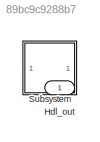
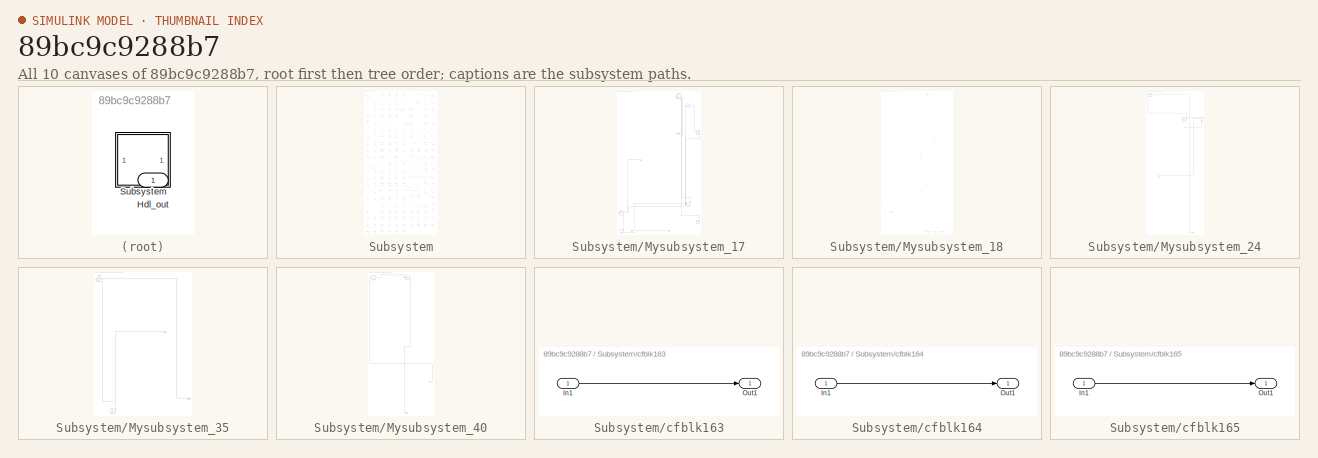
[diagram: thumbnail index - all 10 canvases of the model, root first then tree order]
MODEL slx_89bc9c9288b7
KIND model
CONFIG AbsTol = auto
CONFIG EnableMultiTasking = off
CONFIG FixedStep = auto
CONFIG MaxStep = auto
CONFIG MinStep = auto
CONFIG RelTol = 1e-3
CONFIG SampleTimeConstraint = Unconstrained
CONFIG SolverName = VariableStepAuto
CONFIG StartTime = 0.0
CONFIG StopTime = 10.0
BLOCK [Outport] Hdl_out
  OutDataTypeStr = uint8
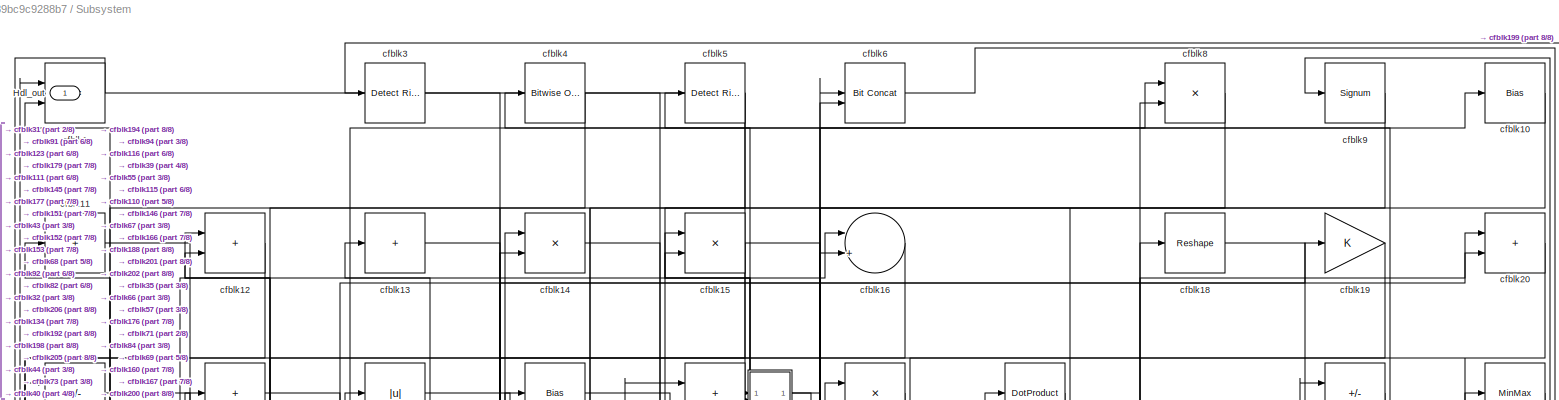
[diagram: Subsystem - part 1/8, full width, top band]
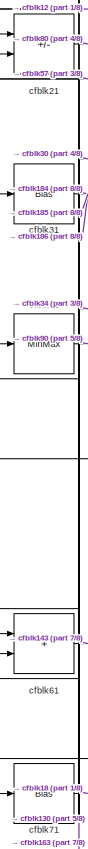
[diagram: Subsystem - part 2/8, top left region]
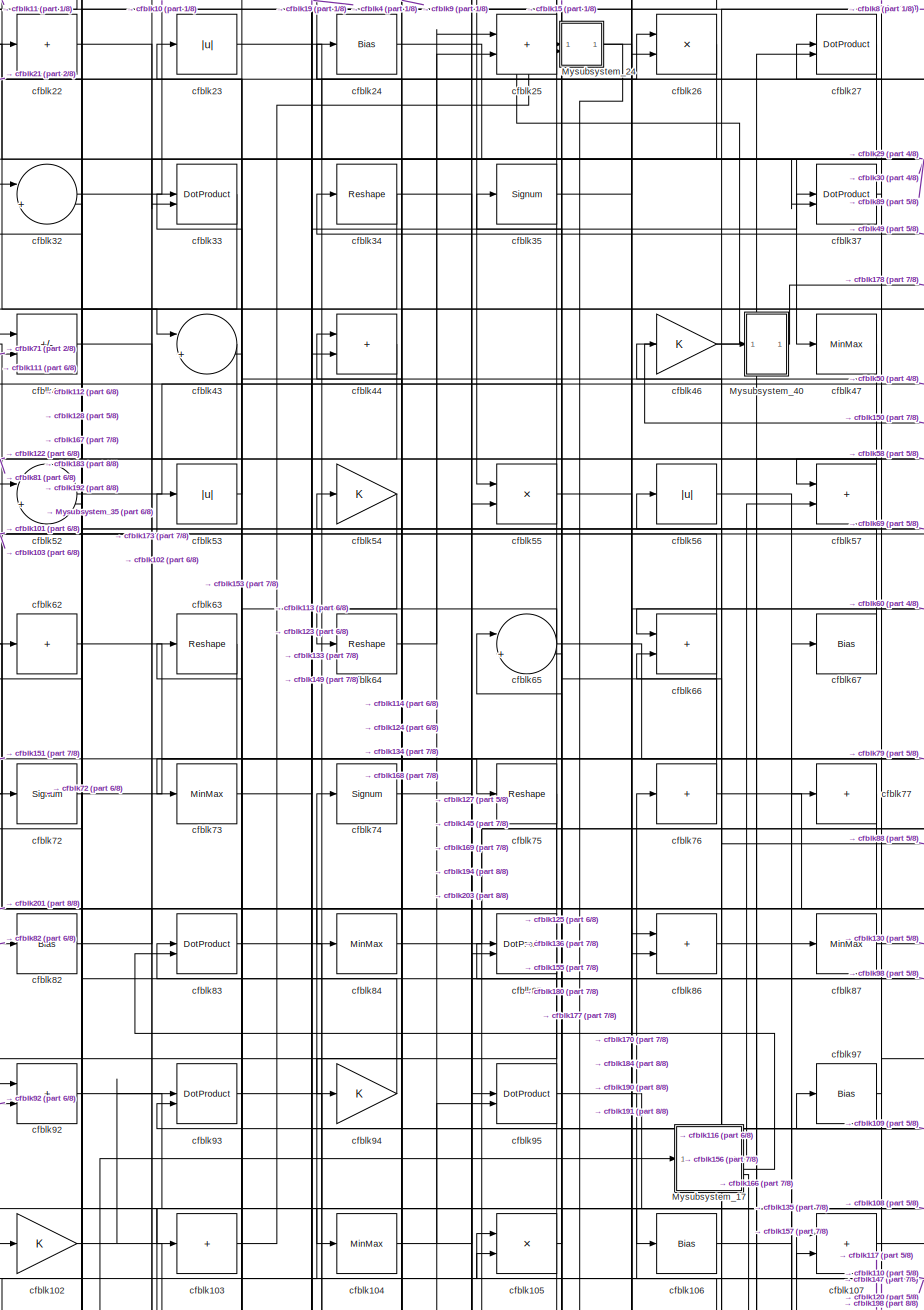
[diagram: Subsystem - part 3/8, top center region]
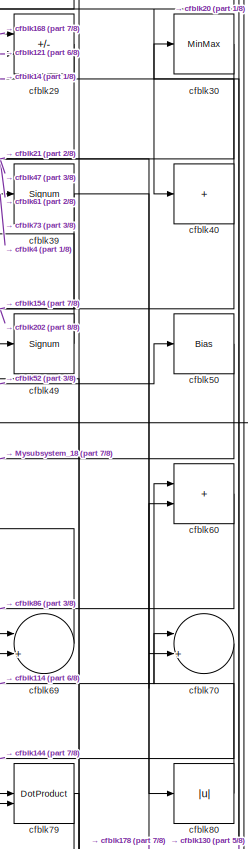
[diagram: Subsystem - part 4/8, top right region]
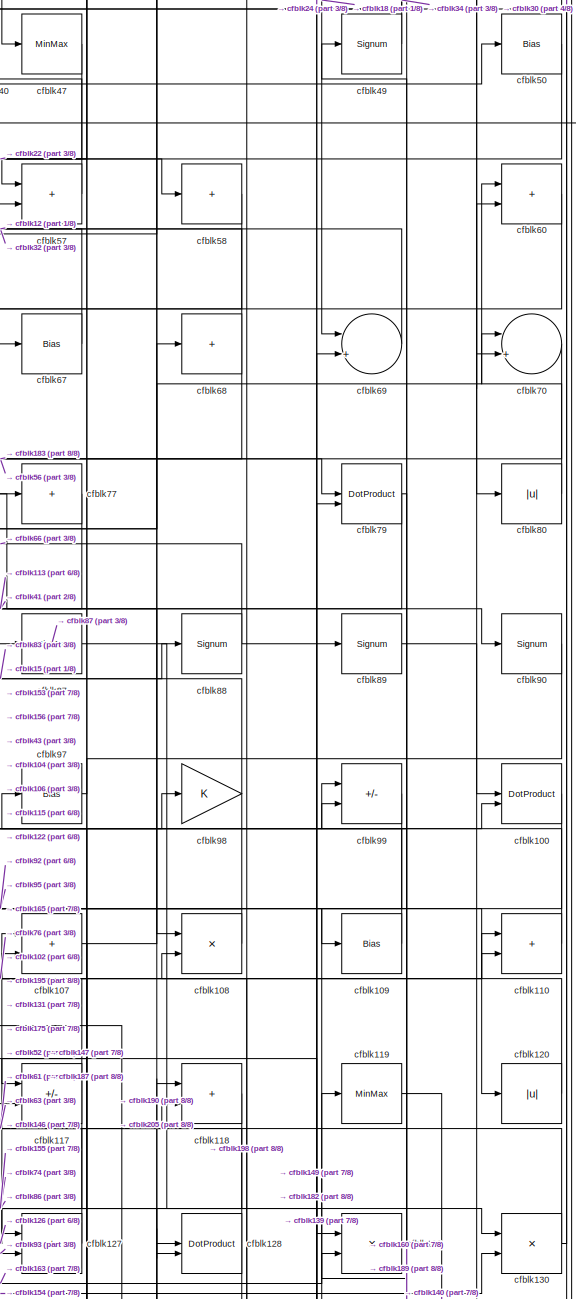
[diagram: Subsystem - part 5/8, middle right region]
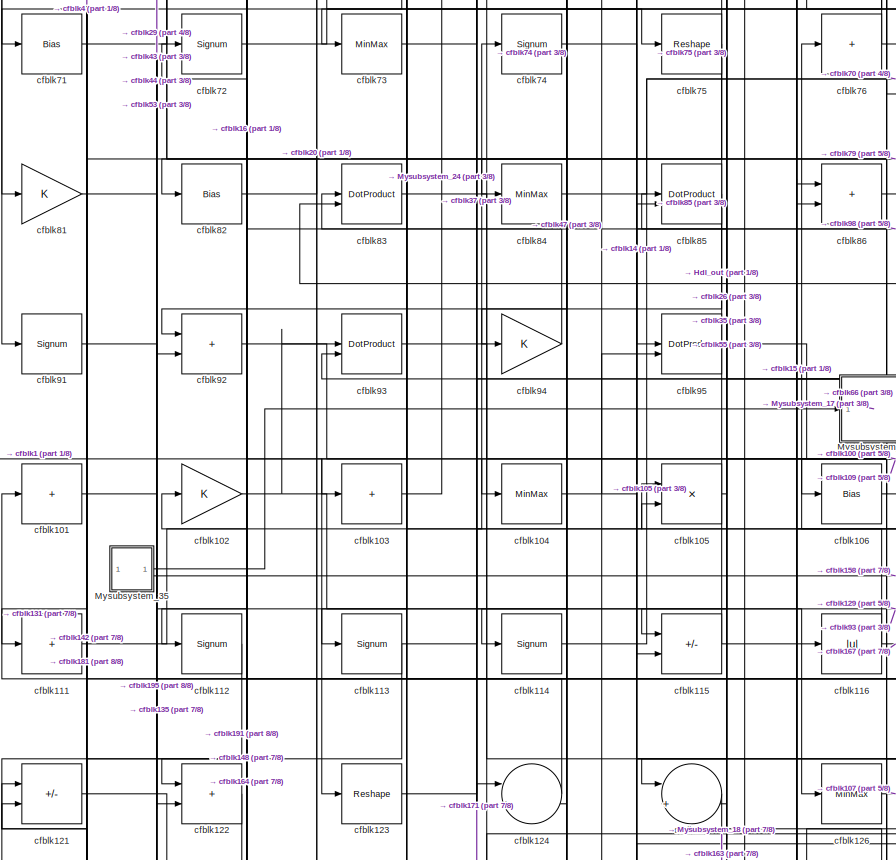
[diagram: Subsystem - part 6/8, middle left region]
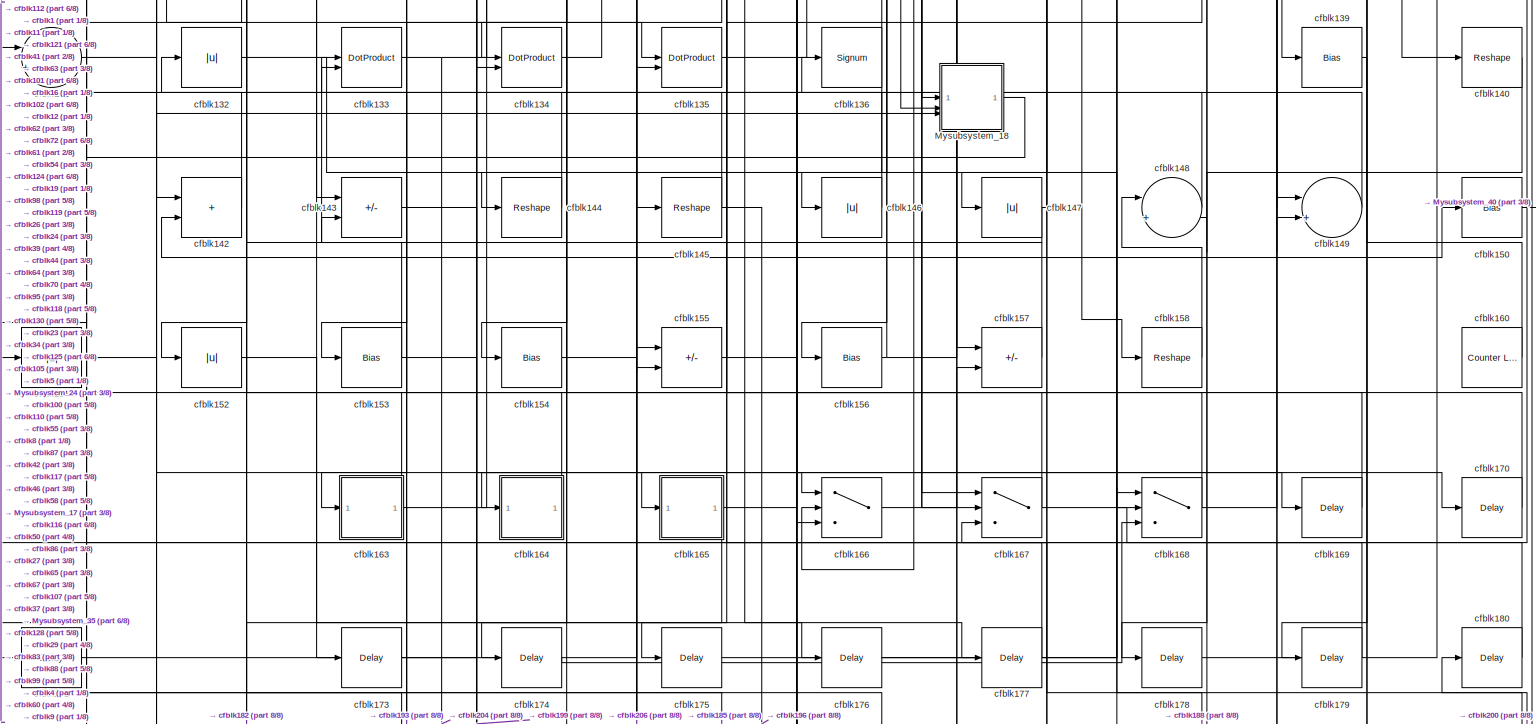
[diagram: Subsystem - part 7/8, full width, bottom band]
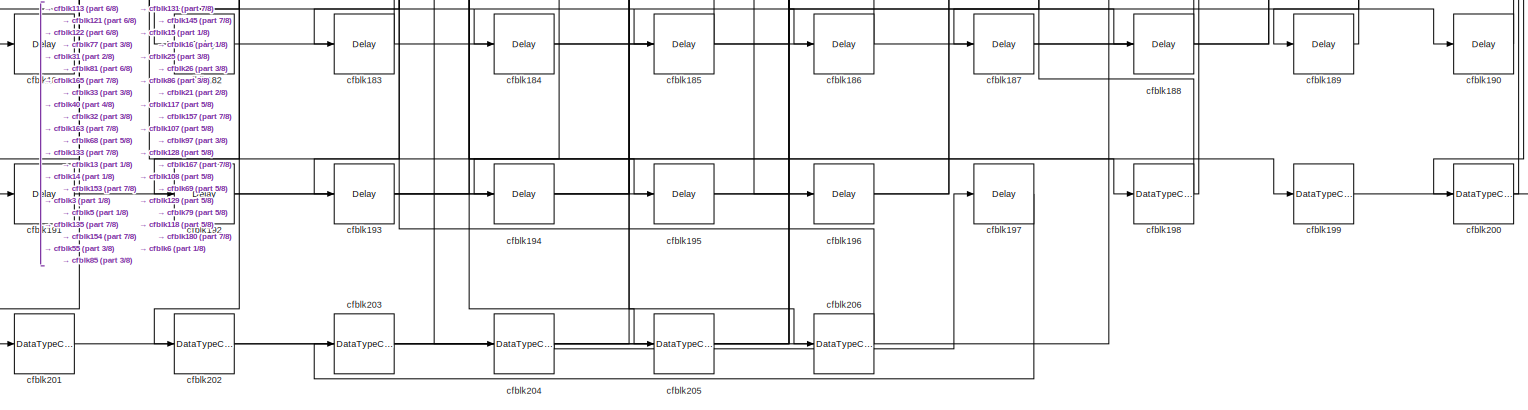
[diagram: Subsystem - part 8/8, full width, bottom band]
BLOCK [SubSystem] Subsystem
BLOCK [Outport] Subsystem/Hdl_out
  OutDataTypeStr = uint8
BLOCK [SubSystem] Subsystem/Mysubsystem_17
  RTWFcnName = Mysubsystem_17
  RTWFcnNameOpts = User specified
  RTWFileNameOpts = Use function name
  RTWSystemCode = Reusable function
  TreatAsAtomicUnit = on
BLOCK [Inport] Subsystem/Mysubsystem_17/In1
BLOCK [Outport] Subsystem/Mysubsystem_17/Out1
BLOCK [Outport] Subsystem/Mysubsystem_17/Out2
  Port = 2
BLOCK [Outport] Subsystem/Mysubsystem_17/Out3
  Port = 3
BLOCK [Sum] Subsystem/Mysubsystem_17/cfblk138
  IconShape = rectangular
BLOCK [MinMax] Subsystem/Mysubsystem_17/cfblk141
BLOCK [Reference] Subsystem/Mysubsystem_17/cfblk159  REF=hdlsllib/Sources/Counter
Free-Running
  SourceBlock = hdlsllib/Sources/Counter\nFree-Running
  SourceType = Counter Free-Running
BLOCK [Constant] Subsystem/Mysubsystem_17/cfblk161
  SampleTime = -1
BLOCK [Product] Subsystem/Mysubsystem_17/cfblk17
  Inputs = */
  RndMeth = Zero
  SaturateOnIntegerOverflow = on
BLOCK [Gain] Subsystem/Mysubsystem_17/cfblk28
BLOCK [Reshape] Subsystem/Mysubsystem_17/cfblk59
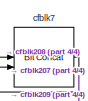
[diagram: Subsystem/Mysubsystem_18 - part 1/4, top center region]
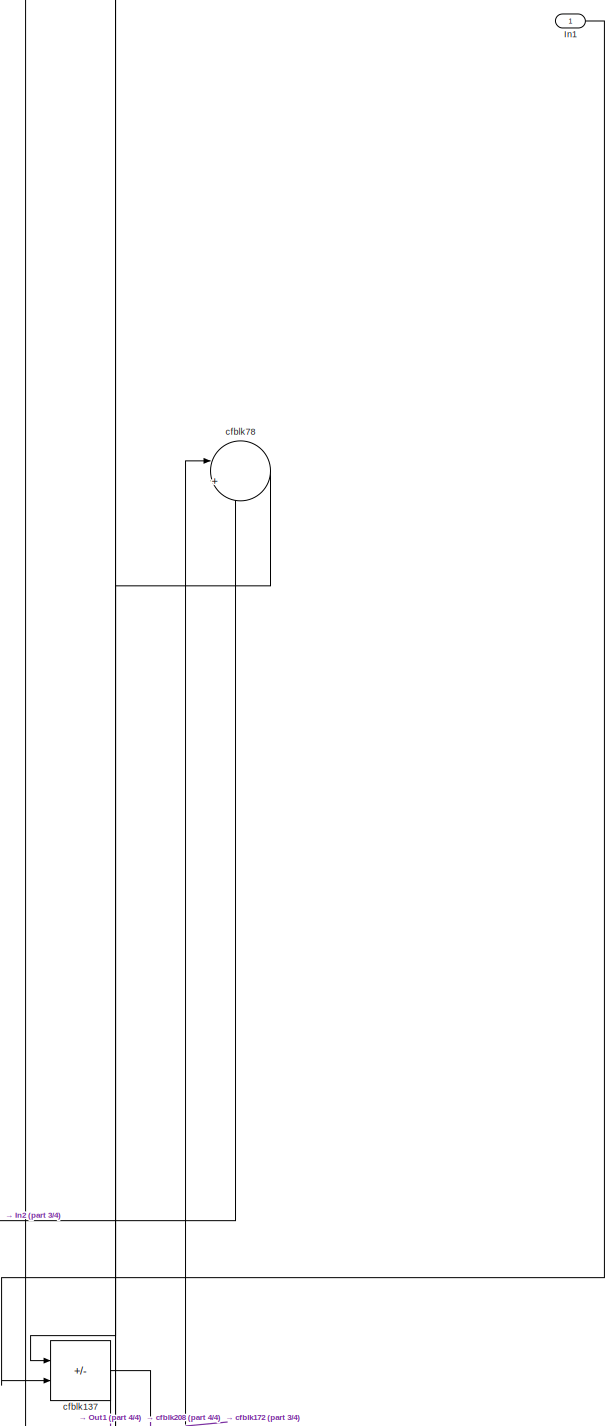
[diagram: Subsystem/Mysubsystem_18 - part 2/4, middle right region]
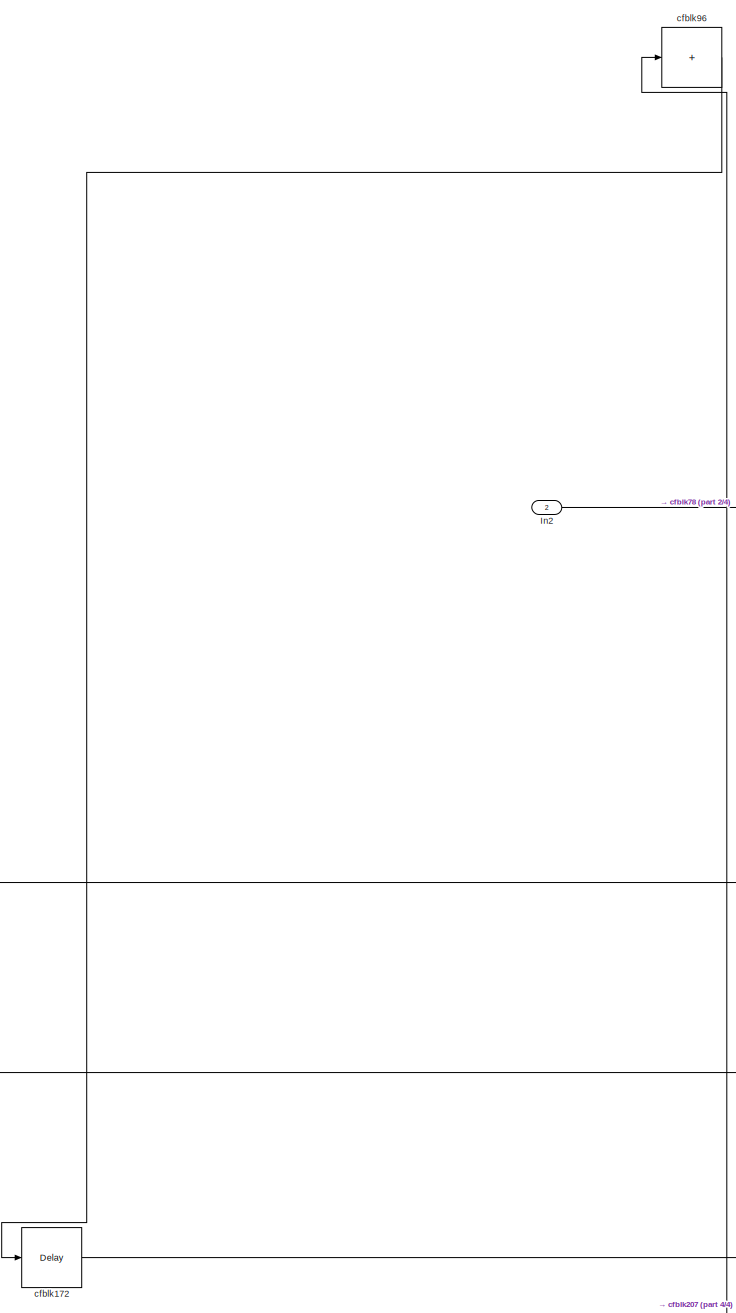
[diagram: Subsystem/Mysubsystem_18 - part 3/4, central region]
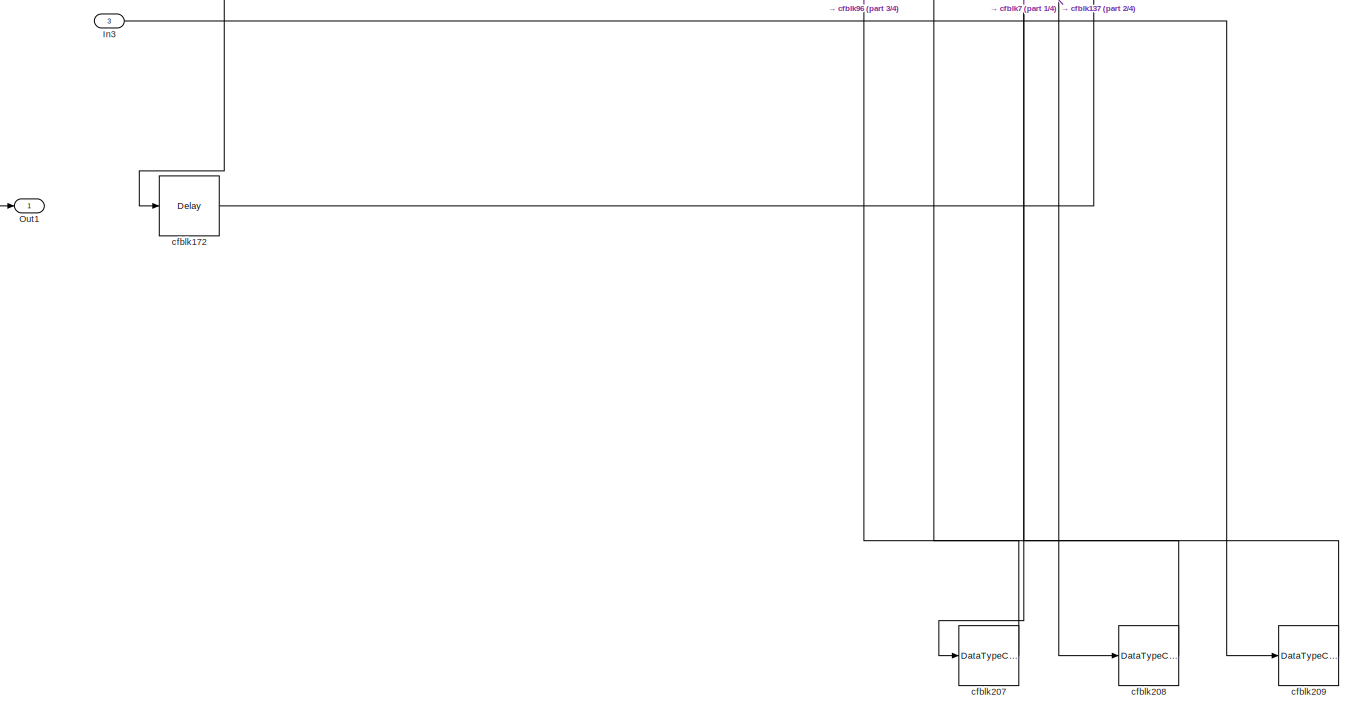
[diagram: Subsystem/Mysubsystem_18 - part 4/4, full width, bottom band]
BLOCK [SubSystem] Subsystem/Mysubsystem_18
  RTWFcnName = Mysubsystem_18
  RTWFcnNameOpts = User specified
  RTWFileNameOpts = Use function name
  RTWSystemCode = Reusable function
  TreatAsAtomicUnit = on
BLOCK [Inport] Subsystem/Mysubsystem_18/In1
BLOCK [Inport] Subsystem/Mysubsystem_18/In2
  Port = 2
BLOCK [Inport] Subsystem/Mysubsystem_18/In3
  Port = 3
BLOCK [Outport] Subsystem/Mysubsystem_18/Out1
BLOCK [Sum] Subsystem/Mysubsystem_18/cfblk137
  IconShape = rectangular
  Inputs = +-
BLOCK [Delay] Subsystem/Mysubsystem_18/cfblk172
  InputPortMap = u0
  SampleTime = 1
BLOCK [DataTypeConversion] Subsystem/Mysubsystem_18/cfblk207
  OutDataTypeStr = uint8
  RndMeth = Floor
  SaturateOnIntegerOverflow = off
BLOCK [DataTypeConversion] Subsystem/Mysubsystem_18/cfblk208
  OutDataTypeStr = uint8
  RndMeth = Floor
  SaturateOnIntegerOverflow = off
BLOCK [DataTypeConversion] Subsystem/Mysubsystem_18/cfblk209
  OutDataTypeStr = uint8
  RndMeth = Floor
  SaturateOnIntegerOverflow = off
BLOCK [Reference] Subsystem/Mysubsystem_18/cfblk7  REF=hdlsllib/Logic and Bit
Operations/Bit Concat
  SourceBlock = hdlsllib/Logic and Bit\nOperations/Bit Concat
  SourceType = Bit Concat
BLOCK [Sum] Subsystem/Mysubsystem_18/cfblk78
  Inputs = |++
BLOCK [Sum] Subsystem/Mysubsystem_18/cfblk96
  IconShape = rectangular
  Inputs = +
BLOCK [SubSystem] Subsystem/Mysubsystem_24
  RTWFcnName = Mysubsystem_24
  RTWFcnNameOpts = User specified
  RTWFileNameOpts = Use function name
  RTWSystemCode = Reusable function
  TreatAsAtomicUnit = on
BLOCK [Inport] Subsystem/Mysubsystem_24/In1
BLOCK [Inport] Subsystem/Mysubsystem_24/In2
  Port = 2
BLOCK [Outport] Subsystem/Mysubsystem_24/Out1
BLOCK [ArithShift] Subsystem/Mysubsystem_24/cfblk2
  BitShiftNumber = 8
  InputPortMap = u0
BLOCK [Abs] Subsystem/Mysubsystem_24/cfblk36
  SaturateOnIntegerOverflow = off
BLOCK [Sum] Subsystem/Mysubsystem_24/cfblk38
  Inputs = |++
BLOCK [SubSystem] Subsystem/Mysubsystem_35
  RTWFcnName = Mysubsystem_35
  RTWFcnNameOpts = User specified
  RTWFileNameOpts = Use function name
  RTWSystemCode = Reusable function
  TreatAsAtomicUnit = on
BLOCK [Outport] Subsystem/Mysubsystem_35/Out1
BLOCK [Outport] Subsystem/Mysubsystem_35/Out2
  Port = 2
BLOCK [Ground] Subsystem/Mysubsystem_35/cfblk162
BLOCK [Gain] Subsystem/Mysubsystem_35/cfblk51
BLOCK [SubSystem] Subsystem/Mysubsystem_40
  RTWFcnName = Mysubsystem_40
  RTWFcnNameOpts = User specified
  RTWFileNameOpts = Use function name
  RTWSystemCode = Reusable function
  TreatAsAtomicUnit = on
BLOCK [Inport] Subsystem/Mysubsystem_40/In1
BLOCK [Outport] Subsystem/Mysubsystem_40/Out1
BLOCK [Abs] Subsystem/Mysubsystem_40/cfblk45
  SaturateOnIntegerOverflow = off
BLOCK [Bias] Subsystem/Mysubsystem_40/cfblk48
  Bias = 0.0
  SaturateOnIntegerOverflow = off
BLOCK [RelationalOperator] Subsystem/cfblk1
  InputSameDT = off
  Operator = <=
  OutDataTypeStr = boolean
BLOCK [Bias] Subsystem/cfblk10
  Bias = 0.0
  SaturateOnIntegerOverflow = off
BLOCK [DotProduct] Subsystem/cfblk100
  OutDataTypeStr = uint8
BLOCK [Sum] Subsystem/cfblk101
  IconShape = rectangular
  Inputs = +
  OutDataTypeStr = uint8
BLOCK [Gain] Subsystem/cfblk102
  OutDataTypeStr = uint8
BLOCK [Sum] Subsystem/cfblk103
  IconShape = rectangular
  Inputs = +
  OutDataTypeStr = uint8
BLOCK [MinMax] Subsystem/cfblk104
  OutDataTypeStr = uint8
BLOCK [Product] Subsystem/cfblk105
  Inputs = */
  OutDataTypeStr = uint8
  RndMeth = Zero
  SaturateOnIntegerOverflow = on
BLOCK [Bias] Subsystem/cfblk106
  Bias = 0.0
  SaturateOnIntegerOverflow = off
BLOCK [Sum] Subsystem/cfblk107
  IconShape = rectangular
  OutDataTypeStr = uint8
BLOCK [Product] Subsystem/cfblk108
  Inputs = */
  OutDataTypeStr = uint8
  RndMeth = Zero
  SaturateOnIntegerOverflow = on
BLOCK [Bias] Subsystem/cfblk109
  Bias = 0.0
  SaturateOnIntegerOverflow = off
BLOCK [Sum] Subsystem/cfblk11
  IconShape = rectangular
  Inputs = +
  OutDataTypeStr = uint8
BLOCK [Sum] Subsystem/cfblk110
  IconShape = rectangular
  OutDataTypeStr = uint8
BLOCK [Sum] Subsystem/cfblk111
  IconShape = rectangular
  Inputs = +
  OutDataTypeStr = uint8
BLOCK [Signum] Subsystem/cfblk112
BLOCK [Signum] Subsystem/cfblk113
BLOCK [Signum] Subsystem/cfblk114
BLOCK [Sum] Subsystem/cfblk115
  IconShape = rectangular
  Inputs = +-
  OutDataTypeStr = uint8
BLOCK [Abs] Subsystem/cfblk116
  OutDataTypeStr = uint8
  SaturateOnIntegerOverflow = off
BLOCK [Sum] Subsystem/cfblk117
  IconShape = rectangular
  Inputs = +-
  OutDataTypeStr = uint8
BLOCK [Sum] Subsystem/cfblk118
  IconShape = rectangular
  OutDataTypeStr = uint8
BLOCK [MinMax] Subsystem/cfblk119
  OutDataTypeStr = uint8
BLOCK [Sum] Subsystem/cfblk12
  IconShape = rectangular
  OutDataTypeStr = uint8
BLOCK [Abs] Subsystem/cfblk120
  OutDataTypeStr = uint8
  SaturateOnIntegerOverflow = off
BLOCK [Sum] Subsystem/cfblk121
  IconShape = rectangular
  Inputs = +-
  OutDataTypeStr = uint8
BLOCK [Sum] Subsystem/cfblk122
  IconShape = rectangular
  OutDataTypeStr = uint8
BLOCK [Reshape] Subsystem/cfblk123
BLOCK [Sum] Subsystem/cfblk124
  Inputs = |++
  OutDataTypeStr = uint8
BLOCK [Sum] Subsystem/cfblk125
  Inputs = |++
  OutDataTypeStr = uint8
BLOCK [MinMax] Subsystem/cfblk126
  OutDataTypeStr = uint8
BLOCK [Sum] Subsystem/cfblk127
  IconShape = rectangular
  OutDataTypeStr = uint8
BLOCK [DotProduct] Subsystem/cfblk128
  OutDataTypeStr = uint8
BLOCK [Product] Subsystem/cfblk129
  Inputs = */
  OutDataTypeStr = uint8
  RndMeth = Zero
  SaturateOnIntegerOverflow = on
BLOCK [Sum] Subsystem/cfblk13
  IconShape = rectangular
  Inputs = +
  OutDataTypeStr = uint8
BLOCK [Product] Subsystem/cfblk130
  Inputs = */
  OutDataTypeStr = uint8
  RndMeth = Zero
  SaturateOnIntegerOverflow = on
BLOCK [Sum] Subsystem/cfblk131
  Inputs = |++
  OutDataTypeStr = uint8
BLOCK [Abs] Subsystem/cfblk132
  OutDataTypeStr = uint8
  SaturateOnIntegerOverflow = off
BLOCK [DotProduct] Subsystem/cfblk133
  OutDataTypeStr = uint8
BLOCK [DotProduct] Subsystem/cfblk134
  OutDataTypeStr = uint8
BLOCK [DotProduct] Subsystem/cfblk135
  OutDataTypeStr = uint8
BLOCK [Signum] Subsystem/cfblk136
BLOCK [Bias] Subsystem/cfblk139
  Bias = 0.0
  SaturateOnIntegerOverflow = off
BLOCK [Product] Subsystem/cfblk14
  Inputs = */
  OutDataTypeStr = uint8
  RndMeth = Zero
  SaturateOnIntegerOverflow = on
BLOCK [Reshape] Subsystem/cfblk140
BLOCK [Sum] Subsystem/cfblk142
  IconShape = rectangular
  OutDataTypeStr = uint8
BLOCK [Sum] Subsystem/cfblk143
  IconShape = rectangular
  Inputs = +-
  OutDataTypeStr = uint8
BLOCK [Reshape] Subsystem/cfblk144
BLOCK [Reshape] Subsystem/cfblk145
BLOCK [Abs] Subsystem/cfblk146
  OutDataTypeStr = uint8
  SaturateOnIntegerOverflow = off
BLOCK [Abs] Subsystem/cfblk147
  OutDataTypeStr = uint8
  SaturateOnIntegerOverflow = off
BLOCK [Sum] Subsystem/cfblk148
  Inputs = |++
  OutDataTypeStr = uint8
BLOCK [Sum] Subsystem/cfblk149
  Inputs = |++
  OutDataTypeStr = uint8
BLOCK [Product] Subsystem/cfblk15
  Inputs = */
  OutDataTypeStr = uint8
  RndMeth = Zero
  SaturateOnIntegerOverflow = on
BLOCK [Bias] Subsystem/cfblk150
  Bias = 0.0
  SaturateOnIntegerOverflow = off
BLOCK [Abs] Subsystem/cfblk151
  OutDataTypeStr = uint8
  SaturateOnIntegerOverflow = off
BLOCK [Abs] Subsystem/cfblk152
  OutDataTypeStr = uint8
  SaturateOnIntegerOverflow = off
BLOCK [Bias] Subsystem/cfblk153
  Bias = 0.0
  SaturateOnIntegerOverflow = off
BLOCK [Bias] Subsystem/cfblk154
  Bias = 0.0
  SaturateOnIntegerOverflow = off
BLOCK [Sum] Subsystem/cfblk155
  IconShape = rectangular
  Inputs = +-
  OutDataTypeStr = uint8
BLOCK [Bias] Subsystem/cfblk156
  Bias = 0.0
  SaturateOnIntegerOverflow = off
BLOCK [Sum] Subsystem/cfblk157
  IconShape = rectangular
  Inputs = +-
  OutDataTypeStr = uint8
BLOCK [Reshape] Subsystem/cfblk158
BLOCK [Sum] Subsystem/cfblk16
  Inputs = |++
  OutDataTypeStr = uint8
BLOCK [Reference] Subsystem/cfblk160  REF=hdlsllib/Sources/Counter
Limited
  SourceBlock = hdlsllib/Sources/Counter\nLimited
  SourceType = Counter Limited
BLOCK [SubSystem] Subsystem/cfblk163
  LibrarySourceBlock = hdlsllib/Ports &\nSubsystems/Subsystem
BLOCK [Inport] Subsystem/cfblk163/In1
BLOCK [Outport] Subsystem/cfblk163/Out1
BLOCK [SubSystem] Subsystem/cfblk164
  LibrarySourceBlock = hdlsllib/Ports &\nSubsystems/Subsystem
BLOCK [Inport] Subsystem/cfblk164/In1
BLOCK [Outport] Subsystem/cfblk164/Out1
BLOCK [SubSystem] Subsystem/cfblk165
  LibrarySourceBlock = hdlsllib/Ports &\nSubsystems/Subsystem
BLOCK [Inport] Subsystem/cfblk165/In1
BLOCK [Outport] Subsystem/cfblk165/Out1
BLOCK [Switch] Subsystem/cfblk166
  InputSameDT = off
  OutDataTypeStr = uint8
  SaturateOnIntegerOverflow = off
BLOCK [Switch] Subsystem/cfblk167
  InputSameDT = off
  OutDataTypeStr = uint8
  SaturateOnIntegerOverflow = off
BLOCK [Switch] Subsystem/cfblk168
  InputSameDT = off
  OutDataTypeStr = uint8
  SaturateOnIntegerOverflow = off
BLOCK [Delay] Subsystem/cfblk169
  InputPortMap = u0
  SampleTime = 1
BLOCK [Delay] Subsystem/cfblk170
  InputPortMap = u0
  SampleTime = 1
BLOCK [Delay] Subsystem/cfblk171
  InputPortMap = u0
  SampleTime = 1
BLOCK [Delay] Subsystem/cfblk173
  InputPortMap = u0
  SampleTime = 1
BLOCK [Delay] Subsystem/cfblk174
  InputPortMap = u0
  SampleTime = 1
BLOCK [Delay] Subsystem/cfblk175
  InputPortMap = u0
  SampleTime = 1
BLOCK [Delay] Subsystem/cfblk176
  InputPortMap = u0
  SampleTime = 1
BLOCK [Delay] Subsystem/cfblk177
  InputPortMap = u0
  SampleTime = 1
BLOCK [Delay] Subsystem/cfblk178
  InputPortMap = u0
  SampleTime = 1
BLOCK [Delay] Subsystem/cfblk179
  InputPortMap = u0
  SampleTime = 1
BLOCK [Reshape] Subsystem/cfblk18
BLOCK [Delay] Subsystem/cfblk180
  InputPortMap = u0
  SampleTime = 1
BLOCK [Delay] Subsystem/cfblk181
  InputPortMap = u0
  SampleTime = 1
BLOCK [Delay] Subsystem/cfblk182
  InputPortMap = u0
  SampleTime = 1
BLOCK [Delay] Subsystem/cfblk183
  InputPortMap = u0
  SampleTime = 1
BLOCK [Delay] Subsystem/cfblk184
  InputPortMap = u0
  SampleTime = 1
BLOCK [Delay] Subsystem/cfblk185
  InputPortMap = u0
  SampleTime = 1
BLOCK [Delay] Subsystem/cfblk186
  InputPortMap = u0
  SampleTime = 1
BLOCK [Delay] Subsystem/cfblk187
  InputPortMap = u0
  SampleTime = 1
BLOCK [Delay] Subsystem/cfblk188
  InputPortMap = u0
  SampleTime = 1
BLOCK [Delay] Subsystem/cfblk189
  InputPortMap = u0
  SampleTime = 1
BLOCK [Gain] Subsystem/cfblk19
  OutDataTypeStr = uint8
BLOCK [Delay] Subsystem/cfblk190
  InputPortMap = u0
  SampleTime = 1
BLOCK [Delay] Subsystem/cfblk191
  InputPortMap = u0
  SampleTime = 1
BLOCK [Delay] Subsystem/cfblk192
  InputPortMap = u0
  SampleTime = 1
BLOCK [Delay] Subsystem/cfblk193
  InputPortMap = u0
  SampleTime = 1
BLOCK [Delay] Subsystem/cfblk194
  InputPortMap = u0
  SampleTime = 1
BLOCK [Delay] Subsystem/cfblk195
  InputPortMap = u0
  SampleTime = 1
BLOCK [Delay] Subsystem/cfblk196
  InputPortMap = u0
  SampleTime = 1
BLOCK [Delay] Subsystem/cfblk197
  InputPortMap = u0
  SampleTime = 1
BLOCK [DataTypeConversion] Subsystem/cfblk198
  OutDataTypeStr = uint8
  RndMeth = Floor
  SaturateOnIntegerOverflow = off
BLOCK [DataTypeConversion] Subsystem/cfblk199
  OutDataTypeStr = uint8
  RndMeth = Floor
  SaturateOnIntegerOverflow = off
BLOCK [Sum] Subsystem/cfblk20
  IconShape = rectangular
  OutDataTypeStr = uint8
BLOCK [DataTypeConversion] Subsystem/cfblk200
  OutDataTypeStr = uint8
  RndMeth = Floor
  SaturateOnIntegerOverflow = off
BLOCK [DataTypeConversion] Subsystem/cfblk201
  OutDataTypeStr = uint8
  RndMeth = Floor
  SaturateOnIntegerOverflow = off
BLOCK [DataTypeConversion] Subsystem/cfblk202
  OutDataTypeStr = uint8
  RndMeth = Floor
  SaturateOnIntegerOverflow = off
BLOCK [DataTypeConversion] Subsystem/cfblk203
  OutDataTypeStr = uint8
  RndMeth = Floor
  SaturateOnIntegerOverflow = off
BLOCK [DataTypeConversion] Subsystem/cfblk204
  OutDataTypeStr = uint8
  RndMeth = Floor
  SaturateOnIntegerOverflow = off
BLOCK [DataTypeConversion] Subsystem/cfblk205
  OutDataTypeStr = uint8
  RndMeth = Floor
  SaturateOnIntegerOverflow = off
BLOCK [DataTypeConversion] Subsystem/cfblk206
  OutDataTypeStr = uint8
  RndMeth = Floor
  SaturateOnIntegerOverflow = off
BLOCK [Sum] Subsystem/cfblk21
  IconShape = rectangular
  Inputs = +-
  OutDataTypeStr = uint8
BLOCK [Sum] Subsystem/cfblk22
  IconShape = rectangular
  Inputs = +
  OutDataTypeStr = uint8
BLOCK [Abs] Subsystem/cfblk23
  OutDataTypeStr = uint8
  SaturateOnIntegerOverflow = off
BLOCK [Bias] Subsystem/cfblk24
  Bias = 0.0
  SaturateOnIntegerOverflow = off
BLOCK [Sum] Subsystem/cfblk25
  IconShape = rectangular
  OutDataTypeStr = uint8
BLOCK [Product] Subsystem/cfblk26
  Inputs = */
  OutDataTypeStr = uint8
  RndMeth = Zero
  SaturateOnIntegerOverflow = on
BLOCK [DotProduct] Subsystem/cfblk27
  OutDataTypeStr = uint8
BLOCK [Sum] Subsystem/cfblk29
  IconShape = rectangular
  Inputs = +-
  OutDataTypeStr = uint8
BLOCK [Reference] Subsystem/cfblk3  REF=hdlsllib/Logic and Bit
Operations/Detect Rise
Positive
  SourceBlock = hdlsllib/Logic and Bit\nOperations/Detect Rise\nPositive
  SourceType = Detect Rise Positive
BLOCK [MinMax] Subsystem/cfblk30
  OutDataTypeStr = uint8
BLOCK [Bias] Subsystem/cfblk31
  Bias = 0.0
  SaturateOnIntegerOverflow = off
BLOCK [Sum] Subsystem/cfblk32
  Inputs = |++
  OutDataTypeStr = uint8
BLOCK [DotProduct] Subsystem/cfblk33
  OutDataTypeStr = uint8
BLOCK [Reshape] Subsystem/cfblk34
BLOCK [Signum] Subsystem/cfblk35
BLOCK [DotProduct] Subsystem/cfblk37
  OutDataTypeStr = uint8
BLOCK [Signum] Subsystem/cfblk39
BLOCK [Reference] Subsystem/cfblk4  REF=simulink/Logic and Bit
Operations/Bitwise
Operator
  LibrarySourceBlock = hdlsllib/Logic and Bit\nOperations/Bitwise\nOperator
  SourceBlock = simulink/Logic and Bit\nOperations/Bitwise\nOperator
  SourceType = Bitwise Operator
BLOCK [Sum] Subsystem/cfblk40
  IconShape = rectangular
  Inputs = +
  OutDataTypeStr = uint8
BLOCK [MinMax] Subsystem/cfblk41
  OutDataTypeStr = uint8
BLOCK [Sum] Subsystem/cfblk42
  IconShape = rectangular
  Inputs = +-
  OutDataTypeStr = uint8
BLOCK [Sum] Subsystem/cfblk43
  Inputs = |++
  OutDataTypeStr = uint8
BLOCK [Sum] Subsystem/cfblk44
  IconShape = rectangular
  OutDataTypeStr = uint8
BLOCK [Gain] Subsystem/cfblk46
  OutDataTypeStr = uint8
BLOCK [MinMax] Subsystem/cfblk47
  OutDataTypeStr = uint8
BLOCK [Signum] Subsystem/cfblk49
BLOCK [Reference] Subsystem/cfblk5  REF=hdlsllib/Logic and Bit
Operations/Detect Rise
Positive
  SourceBlock = hdlsllib/Logic and Bit\nOperations/Detect Rise\nPositive
  SourceType = Detect Rise Positive
BLOCK [Bias] Subsystem/cfblk50
  Bias = 0.0
  SaturateOnIntegerOverflow = off
BLOCK [Sum] Subsystem/cfblk52
  Inputs = |++
  OutDataTypeStr = uint8
BLOCK [Abs] Subsystem/cfblk53
  OutDataTypeStr = uint8
  SaturateOnIntegerOverflow = off
BLOCK [Gain] Subsystem/cfblk54
  OutDataTypeStr = uint8
BLOCK [Product] Subsystem/cfblk55
  Inputs = */
  OutDataTypeStr = uint8
  RndMeth = Zero
  SaturateOnIntegerOverflow = on
BLOCK [Abs] Subsystem/cfblk56
  OutDataTypeStr = uint8
  SaturateOnIntegerOverflow = off
BLOCK [Sum] Subsystem/cfblk57
  IconShape = rectangular
  OutDataTypeStr = uint8
BLOCK [Sum] Subsystem/cfblk58
  IconShape = rectangular
  Inputs = +
  OutDataTypeStr = uint8
BLOCK [Reference] Subsystem/cfblk6  REF=hdlsllib/Logic and Bit
Operations/Bit Concat
  SourceBlock = hdlsllib/Logic and Bit\nOperations/Bit Concat
  SourceType = Bit Concat
BLOCK [Sum] Subsystem/cfblk60
  IconShape = rectangular
  OutDataTypeStr = uint8
BLOCK [Sum] Subsystem/cfblk61
  IconShape = rectangular
  OutDataTypeStr = uint8
BLOCK [Sum] Subsystem/cfblk62
  IconShape = rectangular
  Inputs = +
  OutDataTypeStr = uint8
BLOCK [Reshape] Subsystem/cfblk63
BLOCK [Reshape] Subsystem/cfblk64
BLOCK [Sum] Subsystem/cfblk65
  Inputs = |++
  OutDataTypeStr = uint8
BLOCK [Sum] Subsystem/cfblk66
  IconShape = rectangular
  OutDataTypeStr = uint8
BLOCK [Bias] Subsystem/cfblk67
  Bias = 0.0
  SaturateOnIntegerOverflow = off
BLOCK [Sum] Subsystem/cfblk68
  IconShape = rectangular
  Inputs = +
  OutDataTypeStr = uint8
BLOCK [Sum] Subsystem/cfblk69
  Inputs = |++
  OutDataTypeStr = uint8
BLOCK [Sum] Subsystem/cfblk70
  Inputs = |++
  OutDataTypeStr = uint8
BLOCK [Bias] Subsystem/cfblk71
  Bias = 0.0
  SaturateOnIntegerOverflow = off
BLOCK [Signum] Subsystem/cfblk72
BLOCK [MinMax] Subsystem/cfblk73
  OutDataTypeStr = uint8
BLOCK [Signum] Subsystem/cfblk74
BLOCK [Reshape] Subsystem/cfblk75
BLOCK [Sum] Subsystem/cfblk76
  IconShape = rectangular
  Inputs = +
  OutDataTypeStr = uint8
BLOCK [Sum] Subsystem/cfblk77
  IconShape = rectangular
  Inputs = +
  OutDataTypeStr = uint8
BLOCK [DotProduct] Subsystem/cfblk79
  OutDataTypeStr = uint8
BLOCK [Product] Subsystem/cfblk8
  Inputs = */
  OutDataTypeStr = uint8
  RndMeth = Zero
  SaturateOnIntegerOverflow = on
BLOCK [Abs] Subsystem/cfblk80
  OutDataTypeStr = uint8
  SaturateOnIntegerOverflow = off
BLOCK [Gain] Subsystem/cfblk81
  OutDataTypeStr = uint8
BLOCK [Bias] Subsystem/cfblk82
  Bias = 0.0
  SaturateOnIntegerOverflow = off
BLOCK [DotProduct] Subsystem/cfblk83
  OutDataTypeStr = uint8
BLOCK [MinMax] Subsystem/cfblk84
  OutDataTypeStr = uint8
BLOCK [DotProduct] Subsystem/cfblk85
  OutDataTypeStr = uint8
BLOCK [Sum] Subsystem/cfblk86
  IconShape = rectangular
  OutDataTypeStr = uint8
BLOCK [MinMax] Subsystem/cfblk87
  OutDataTypeStr = uint8
BLOCK [Signum] Subsystem/cfblk88
BLOCK [Signum] Subsystem/cfblk89
BLOCK [Signum] Subsystem/cfblk9
BLOCK [Signum] Subsystem/cfblk90
BLOCK [Signum] Subsystem/cfblk91
BLOCK [Sum] Subsystem/cfblk92
  IconShape = rectangular
  OutDataTypeStr = uint8
BLOCK [DotProduct] Subsystem/cfblk93
  OutDataTypeStr = uint8
BLOCK [Gain] Subsystem/cfblk94
  OutDataTypeStr = uint8
BLOCK [DotProduct] Subsystem/cfblk95
  OutDataTypeStr = uint8
BLOCK [Bias] Subsystem/cfblk97
  Bias = 0.0
  SaturateOnIntegerOverflow = off
BLOCK [Gain] Subsystem/cfblk98
  OutDataTypeStr = uint8
BLOCK [Sum] Subsystem/cfblk99
  IconShape = rectangular
  Inputs = +-
  OutDataTypeStr = uint8
LINE Subsystem/Mysubsystem_17/In1:1 -> Subsystem/Mysubsystem_17/cfblk138:1
LINE Subsystem/Mysubsystem_17/cfblk138:1 -> Subsystem/Mysubsystem_17/cfblk17:1
NET Subsystem/Mysubsystem_17/cfblk141:1 -> Subsystem/Mysubsystem_17/Out2:1, Subsystem/Mysubsystem_17/cfblk28:1
LINE Subsystem/Mysubsystem_17/cfblk159:1 -> Subsystem/Mysubsystem_17/cfblk17:2
NET Subsystem/Mysubsystem_17/cfblk161:1 -> Subsystem/Mysubsystem_17/Out3:1, Subsystem/Mysubsystem_17/cfblk141:1
LINE Subsystem/Mysubsystem_17/cfblk17:1 -> Subsystem/Mysubsystem_17/Out1:1
LINE Subsystem/Mysubsystem_17/cfblk28:1 -> Subsystem/Mysubsystem_17/cfblk59:1
LINE Subsystem/Mysubsystem_17/cfblk59:1 -> Subsystem/Mysubsystem_17/cfblk138:2
LINE Subsystem/Mysubsystem_17:1 -> Subsystem/cfblk57:2
LINE Subsystem/Mysubsystem_17:2 -> Subsystem/cfblk83:2
LINE Subsystem/Mysubsystem_17:3 -> Subsystem/cfblk166:2
LINE Subsystem/Mysubsystem_18/In1:1 -> Subsystem/Mysubsystem_18/cfblk137:2
LINE Subsystem/Mysubsystem_18/In2:1 -> Subsystem/Mysubsystem_18/cfblk78:2
LINE Subsystem/Mysubsystem_18/In3:1 -> Subsystem/Mysubsystem_18/cfblk209:1
NET Subsystem/Mysubsystem_18/cfblk137:1 -> Subsystem/Mysubsystem_18/Out1:1, Subsystem/Mysubsystem_18/cfblk208:1
LINE Subsystem/Mysubsystem_18/cfblk172:1 -> Subsystem/Mysubsystem_18/cfblk78:1
LINE Subsystem/Mysubsystem_18/cfblk207:1 -> Subsystem/Mysubsystem_18/cfblk96:1
LINE Subsystem/Mysubsystem_18/cfblk208:1 -> Subsystem/Mysubsystem_18/cfblk7:1
LINE Subsystem/Mysubsystem_18/cfblk209:1 -> Subsystem/Mysubsystem_18/cfblk7:2
LINE Subsystem/Mysubsystem_18/cfblk78:1 -> Subsystem/Mysubsystem_18/cfblk137:1
LINE Subsystem/Mysubsystem_18/cfblk7:1 -> Subsystem/Mysubsystem_18/cfblk207:1
LINE Subsystem/Mysubsystem_18/cfblk96:1 -> Subsystem/Mysubsystem_18/cfblk172:1
LINE Subsystem/Mysubsystem_18:1 -> Subsystem/cfblk171:1
LINE Subsystem/Mysubsystem_24/In1:1 -> Subsystem/Mysubsystem_24/cfblk38:2
LINE Subsystem/Mysubsystem_24/In2:1 -> Subsystem/Mysubsystem_24/cfblk38:1
LINE Subsystem/Mysubsystem_24/cfblk2:1 -> Subsystem/Mysubsystem_24/Out1:1
LINE Subsystem/Mysubsystem_24/cfblk36:1 -> Subsystem/Mysubsystem_24/cfblk2:1
LINE Subsystem/Mysubsystem_24/cfblk38:1 -> Subsystem/Mysubsystem_24/cfblk36:1
LINE Subsystem/Mysubsystem_24:1 -> Subsystem/cfblk177:1
NET Subsystem/Mysubsystem_35/cfblk162:1 -> Subsystem/Mysubsystem_35/Out1:1, Subsystem/Mysubsystem_35/cfblk51:1
LINE Subsystem/Mysubsystem_35/cfblk51:1 -> Subsystem/Mysubsystem_35/Out2:1
LINE Subsystem/Mysubsystem_35:1 -> Subsystem/Mysubsystem_17:1
LINE Subsystem/Mysubsystem_35:2 -> Subsystem/cfblk158:1
LINE Subsystem/Mysubsystem_40/In1:1 -> Subsystem/Mysubsystem_40/cfblk45:1
LINE Subsystem/Mysubsystem_40/cfblk45:1 -> Subsystem/Mysubsystem_40/cfblk48:1
LINE Subsystem/Mysubsystem_40/cfblk48:1 -> Subsystem/Mysubsystem_40/Out1:1
LINE Subsystem/Mysubsystem_40:1 -> Subsystem/cfblk178:1
LINE Subsystem/cfblk100:1 -> Subsystem/cfblk115:1
NET Subsystem/cfblk101:1 -> Subsystem/cfblk142:1, Subsystem/cfblk53:1
NET Subsystem/cfblk102:1 -> Subsystem/cfblk129:1, Subsystem/cfblk93:1
LINE Subsystem/cfblk103:1 -> Subsystem/Mysubsystem_24:2
NET Subsystem/cfblk104:1 -> Subsystem/cfblk25:1, Subsystem/cfblk88:1
LINE Subsystem/cfblk105:1 -> Subsystem/cfblk85:1
NET Subsystem/cfblk106:1 -> Subsystem/cfblk110:2, Subsystem/cfblk56:1
NET Subsystem/cfblk107:1 -> Subsystem/cfblk187:1, Subsystem/cfblk68:1
LINE Subsystem/cfblk108:1 -> Subsystem/cfblk106:1
LINE Subsystem/cfblk109:1 -> Subsystem/cfblk43:2
LINE Subsystem/cfblk10:1 -> Subsystem/cfblk55:1
LINE Subsystem/cfblk110:1 -> Subsystem/cfblk15:2
LINE Subsystem/cfblk111:1 -> Subsystem/cfblk74:1
LINE Subsystem/cfblk112:1 -> Subsystem/cfblk131:1
NET Subsystem/cfblk113:1 -> Subsystem/cfblk181:1, Subsystem/cfblk37:1
LINE Subsystem/cfblk114:1 -> Subsystem/cfblk70:1
NET Subsystem/cfblk115:1 -> Subsystem/Hdl_out:1, Subsystem/cfblk126:1
NET Subsystem/cfblk116:1 -> Subsystem/cfblk167:2, Subsystem/cfblk35:1
NET Subsystem/cfblk117:1 -> Subsystem/cfblk146:1, Subsystem/cfblk93:2
LINE Subsystem/cfblk118:1 -> Subsystem/cfblk155:2
LINE Subsystem/cfblk119:1 -> Subsystem/cfblk140:1
LINE Subsystem/cfblk11:1 -> Subsystem/cfblk43:1
LINE Subsystem/cfblk120:1 -> Subsystem/cfblk76:1
NET Subsystem/cfblk121:1 -> Subsystem/cfblk135:1, Subsystem/cfblk29:2
LINE Subsystem/cfblk122:1 -> Subsystem/cfblk191:1
LINE Subsystem/cfblk123:1 -> Subsystem/cfblk105:1
LINE Subsystem/cfblk124:1 -> Subsystem/cfblk101:1
NET Subsystem/cfblk125:1 -> Subsystem/Mysubsystem_18:2, Subsystem/cfblk163:1
LINE Subsystem/cfblk126:1 -> Subsystem/cfblk107:1
LINE Subsystem/cfblk127:1 -> Subsystem/cfblk63:1
NET Subsystem/cfblk128:1 -> Subsystem/cfblk175:1, Subsystem/cfblk52:2
LINE Subsystem/cfblk129:1 -> Subsystem/cfblk49:1
LINE Subsystem/cfblk12:1 -> Subsystem/cfblk31:1
NET Subsystem/cfblk130:1 -> Subsystem/cfblk30:1, Subsystem/cfblk61:2
LINE Subsystem/cfblk131:1 -> Subsystem/cfblk118:2
LINE Subsystem/cfblk132:1 -> Subsystem/cfblk168:2
NET Subsystem/cfblk133:1 -> Subsystem/cfblk204:1, Subsystem/cfblk26:1
NET Subsystem/cfblk134:1 -> Subsystem/cfblk164:1, Subsystem/cfblk95:2
LINE Subsystem/cfblk135:1 -> Subsystem/cfblk87:1
NET Subsystem/cfblk136:1 -> Subsystem/cfblk174:1, Subsystem/cfblk42:1
LINE Subsystem/cfblk139:1 -> Subsystem/cfblk179:1
LINE Subsystem/cfblk13:1 -> Subsystem/cfblk205:1
LINE Subsystem/cfblk140:1 -> Subsystem/cfblk148:2
LINE Subsystem/cfblk142:1 -> Subsystem/cfblk121:1
LINE Subsystem/cfblk143:1 -> Subsystem/cfblk165:1
LINE Subsystem/cfblk144:1 -> Subsystem/cfblk132:1
NET Subsystem/cfblk145:1 -> Subsystem/cfblk11:1, Subsystem/cfblk196:1
LINE Subsystem/cfblk146:1 -> Subsystem/cfblk5:1
NET Subsystem/cfblk147:1 -> Subsystem/cfblk107:2, Subsystem/cfblk143:2
NET Subsystem/cfblk148:1 -> Subsystem/cfblk136:1, Subsystem/cfblk72:1
LINE Subsystem/cfblk149:1 -> Subsystem/cfblk24:1
LINE Subsystem/cfblk14:1 -> Subsystem/cfblk116:1
LINE Subsystem/cfblk150:1 -> Subsystem/Mysubsystem_40:1
NET Subsystem/cfblk151:1 -> Subsystem/Mysubsystem_18:3, Subsystem/cfblk166:1, Subsystem/cfblk16:1
LINE Subsystem/cfblk152:1 -> Subsystem/cfblk176:1
NET Subsystem/cfblk153:1 -> Subsystem/cfblk12:1, Subsystem/cfblk199:1, Subsystem/cfblk98:1
NET Subsystem/cfblk154:1 -> Subsystem/cfblk130:2, Subsystem/cfblk206:1
NET Subsystem/cfblk155:1 -> Subsystem/cfblk100:2, Subsystem/cfblk65:2
NET Subsystem/cfblk156:1 -> Subsystem/cfblk150:1, Subsystem/cfblk46:1, Subsystem/cfblk99:1
LINE Subsystem/cfblk157:1 -> Subsystem/cfblk133:1
NET Subsystem/cfblk158:1 -> Subsystem/cfblk142:2, Subsystem/cfblk148:1
NET Subsystem/cfblk15:1 -> Subsystem/cfblk188:1, Subsystem/cfblk91:1
NET Subsystem/cfblk160:1 -> Subsystem/cfblk4:1, Subsystem/cfblk99:2
LINE Subsystem/cfblk163/In1:1 -> Subsystem/cfblk163/Out1:1
NET Subsystem/cfblk163:1 -> Subsystem/cfblk119:1, Subsystem/cfblk193:1, Subsystem/cfblk41:1
LINE Subsystem/cfblk164/In1:1 -> Subsystem/cfblk164/Out1:1
LINE Subsystem/cfblk164:1 -> Subsystem/cfblk102:1
LINE Subsystem/cfblk165/In1:1 -> Subsystem/cfblk165/Out1:1
NET Subsystem/cfblk165:1 -> Subsystem/cfblk110:1, Subsystem/cfblk182:1
NET Subsystem/cfblk166:1 -> Subsystem/cfblk27:2, Subsystem/cfblk67:1
NET Subsystem/cfblk167:1 -> Subsystem/cfblk62:1, Subsystem/cfblk9:1
NET Subsystem/cfblk168:1 -> Subsystem/cfblk29:1, Subsystem/cfblk44:1
LINE Subsystem/cfblk169:1 -> Subsystem/cfblk65:1
LINE Subsystem/cfblk16:1 -> Subsystem/cfblk92:1
LINE Subsystem/cfblk170:1 -> Subsystem/cfblk133:2
LINE Subsystem/cfblk171:1 -> Subsystem/cfblk124:1
LINE Subsystem/cfblk173:1 -> Subsystem/cfblk155:1
LINE Subsystem/cfblk174:1 -> Subsystem/cfblk168:3
LINE Subsystem/cfblk175:1 -> Subsystem/cfblk168:1
LINE Subsystem/cfblk176:1 -> Subsystem/cfblk8:2
LINE Subsystem/cfblk177:1 -> Subsystem/cfblk1:2
LINE Subsystem/cfblk178:1 -> Subsystem/cfblk60:2
LINE Subsystem/cfblk179:1 -> Subsystem/cfblk1:1
LINE Subsystem/cfblk180:1 -> Subsystem/cfblk105:2
LINE Subsystem/cfblk181:1 -> Subsystem/cfblk121:2
LINE Subsystem/cfblk182:1 -> Subsystem/cfblk69:2
LINE Subsystem/cfblk183:1 -> Subsystem/cfblk32:2
LINE Subsystem/cfblk184:1 -> Subsystem/cfblk86:1
LINE Subsystem/cfblk185:1 -> Subsystem/cfblk131:2
LINE Subsystem/cfblk186:1 -> Subsystem/cfblk21:2
LINE Subsystem/cfblk187:1 -> Subsystem/cfblk79:2
LINE Subsystem/cfblk188:1 -> Subsystem/cfblk167:3
LINE Subsystem/cfblk189:1 -> Subsystem/cfblk129:2
LINE Subsystem/cfblk18:1 -> Subsystem/cfblk69:1
LINE Subsystem/cfblk190:1 -> Subsystem/cfblk118:1
LINE Subsystem/cfblk191:1 -> Subsystem/cfblk26:2
LINE Subsystem/cfblk192:1 -> Subsystem/cfblk14:2
LINE Subsystem/cfblk193:1 -> Subsystem/cfblk135:2
LINE Subsystem/cfblk194:1 -> Subsystem/cfblk55:2
LINE Subsystem/cfblk195:1 -> Subsystem/cfblk117:2
LINE Subsystem/cfblk196:1 -> Subsystem/cfblk157:2
LINE Subsystem/cfblk197:1 -> Subsystem/cfblk203:1
NET Subsystem/cfblk198:1 -> Subsystem/cfblk108:2, Subsystem/cfblk97:1
LINE Subsystem/cfblk199:1 -> Subsystem/cfblk3:1
LINE Subsystem/cfblk19:1 -> Subsystem/cfblk134:2
LINE Subsystem/cfblk1:1 -> Subsystem/cfblk123:1
LINE Subsystem/cfblk200:1 -> Subsystem/cfblk180:1
LINE Subsystem/cfblk201:1 -> Subsystem/cfblk6:1
LINE Subsystem/cfblk202:1 -> Subsystem/cfblk6:2
LINE Subsystem/cfblk203:1 -> Subsystem/cfblk85:2
LINE Subsystem/cfblk204:1 -> Subsystem/cfblk197:1
NET Subsystem/cfblk205:1 -> Subsystem/cfblk128:1, Subsystem/cfblk16:2
LINE Subsystem/cfblk206:1 -> Subsystem/cfblk13:1
NET Subsystem/cfblk20:1 -> Subsystem/cfblk40:1, Subsystem/cfblk66:1
LINE Subsystem/cfblk21:1 -> Subsystem/cfblk80:1
LINE Subsystem/cfblk22:1 -> Subsystem/cfblk58:1
LINE Subsystem/cfblk23:1 -> Subsystem/cfblk145:1
LINE Subsystem/cfblk24:1 -> Subsystem/cfblk89:1
LINE Subsystem/cfblk25:1 -> Subsystem/cfblk190:1
NET Subsystem/cfblk26:1 -> Subsystem/cfblk124:2, Subsystem/cfblk125:1
NET Subsystem/cfblk27:1 -> Subsystem/cfblk33:2, Subsystem/cfblk37:2
LINE Subsystem/cfblk29:1 -> Subsystem/cfblk73:1
NET Subsystem/cfblk30:1 -> Subsystem/cfblk47:1, Subsystem/cfblk61:1
NET Subsystem/cfblk31:1 -> Subsystem/cfblk184:1, Subsystem/cfblk185:1, Subsystem/cfblk186:1
LINE Subsystem/cfblk32:1 -> Subsystem/cfblk10:1
LINE Subsystem/cfblk33:1 -> Subsystem/cfblk192:1
NET Subsystem/cfblk34:1 -> Subsystem/cfblk169:1, Subsystem/cfblk42:2, Subsystem/cfblk71:1
LINE Subsystem/cfblk35:1 -> Subsystem/cfblk8:1
LINE Subsystem/cfblk37:1 -> Subsystem/cfblk147:1
NET Subsystem/cfblk39:1 -> Subsystem/cfblk154:1, Subsystem/cfblk70:2
LINE Subsystem/cfblk3:1 -> Subsystem/cfblk198:1
NET Subsystem/cfblk40:1 -> Subsystem/cfblk14:1, Subsystem/cfblk202:1
LINE Subsystem/cfblk41:1 -> Subsystem/cfblk90:1
LINE Subsystem/cfblk42:1 -> Subsystem/cfblk173:1
NET Subsystem/cfblk43:1 -> Subsystem/cfblk122:2, Subsystem/cfblk81:1
LINE Subsystem/cfblk44:1 -> Subsystem/cfblk92:2
LINE Subsystem/cfblk46:1 -> Subsystem/Mysubsystem_24:1
LINE Subsystem/cfblk47:1 -> Subsystem/cfblk114:1
LINE Subsystem/cfblk49:1 -> Subsystem/cfblk34:1
NET Subsystem/cfblk4:1 -> Subsystem/cfblk111:1, Subsystem/cfblk39:1, Subsystem/cfblk44:2
LINE Subsystem/cfblk50:1 -> Subsystem/Mysubsystem_18:1
LINE Subsystem/cfblk52:1 -> Subsystem/cfblk50:1
LINE Subsystem/cfblk53:1 -> Subsystem/cfblk33:1
LINE Subsystem/cfblk54:1 -> Subsystem/cfblk153:1
NET Subsystem/cfblk55:1 -> Subsystem/cfblk125:2, Subsystem/cfblk170:1
NET Subsystem/cfblk56:1 -> Subsystem/cfblk77:1, Subsystem/cfblk79:1
LINE Subsystem/cfblk57:1 -> Subsystem/cfblk21:1
LINE Subsystem/cfblk58:1 -> Subsystem/cfblk156:1
LINE Subsystem/cfblk5:1 -> Subsystem/cfblk194:1
LINE Subsystem/cfblk60:1 -> Subsystem/cfblk86:2
LINE Subsystem/cfblk61:1 -> Subsystem/cfblk143:1
LINE Subsystem/cfblk62:1 -> Subsystem/cfblk95:1
LINE Subsystem/cfblk63:1 -> Subsystem/cfblk151:1
NET Subsystem/cfblk64:1 -> Subsystem/cfblk134:1, Subsystem/cfblk25:2, Subsystem/cfblk84:1
NET Subsystem/cfblk65:1 -> Subsystem/cfblk157:1, Subsystem/cfblk64:1
NET Subsystem/cfblk66:1 -> Subsystem/cfblk103:1, Subsystem/cfblk52:1
LINE Subsystem/cfblk67:1 -> Subsystem/cfblk15:1
NET Subsystem/cfblk68:1 -> Subsystem/cfblk12:2, Subsystem/cfblk183:1
LINE Subsystem/cfblk69:1 -> Subsystem/cfblk32:1
LINE Subsystem/cfblk6:1 -> Subsystem/cfblk200:1
LINE Subsystem/cfblk70:1 -> Subsystem/cfblk144:1
LINE Subsystem/cfblk71:1 -> Subsystem/cfblk18:1
LINE Subsystem/cfblk72:1 -> Subsystem/cfblk75:1
LINE Subsystem/cfblk73:1 -> Subsystem/cfblk19:1
LINE Subsystem/cfblk74:1 -> Subsystem/cfblk127:1
LINE Subsystem/cfblk75:1 -> Subsystem/cfblk82:1
NET Subsystem/cfblk76:1 -> Subsystem/cfblk108:1, Subsystem/cfblk54:1
LINE Subsystem/cfblk77:1 -> Subsystem/cfblk201:1
NET Subsystem/cfblk79:1 -> Subsystem/cfblk113:1, Subsystem/cfblk189:1
LINE Subsystem/cfblk80:1 -> Subsystem/cfblk60:1
LINE Subsystem/cfblk81:1 -> Subsystem/cfblk195:1
LINE Subsystem/cfblk82:1 -> Subsystem/cfblk20:1
LINE Subsystem/cfblk83:1 -> Subsystem/cfblk149:1
LINE Subsystem/cfblk84:1 -> Subsystem/cfblk20:2
LINE Subsystem/cfblk85:1 -> Subsystem/cfblk112:1
NET Subsystem/cfblk86:1 -> Subsystem/cfblk128:2, Subsystem/cfblk167:1
LINE Subsystem/cfblk87:1 -> Subsystem/cfblk130:1
NET Subsystem/cfblk88:1 -> Subsystem/cfblk149:2, Subsystem/cfblk66:2
LINE Subsystem/cfblk89:1 -> Subsystem/cfblk100:1
NET Subsystem/cfblk8:1 -> Subsystem/cfblk166:3, Subsystem/cfblk57:1
LINE Subsystem/cfblk90:1 -> Subsystem/cfblk117:1
LINE Subsystem/cfblk91:1 -> Subsystem/cfblk115:2
LINE Subsystem/cfblk92:1 -> Subsystem/cfblk109:1
NET Subsystem/cfblk93:1 -> Subsystem/cfblk127:2, Subsystem/cfblk23:1
LINE Subsystem/cfblk94:1 -> Subsystem/cfblk22:1
LINE Subsystem/cfblk95:1 -> Subsystem/cfblk120:1
LINE Subsystem/cfblk97:1 -> Subsystem/cfblk27:1
NET Subsystem/cfblk98:1 -> Subsystem/cfblk104:1, Subsystem/cfblk122:1, Subsystem/cfblk83:1
LINE Subsystem/cfblk99:1 -> Subsystem/cfblk139:1
NET Subsystem/cfblk9:1 -> Subsystem/cfblk152:1, Subsystem/cfblk94:1
note: NET lines group one-source signal fan-out (src -> all destinations, sorted); 1:1 wires keep LINE
